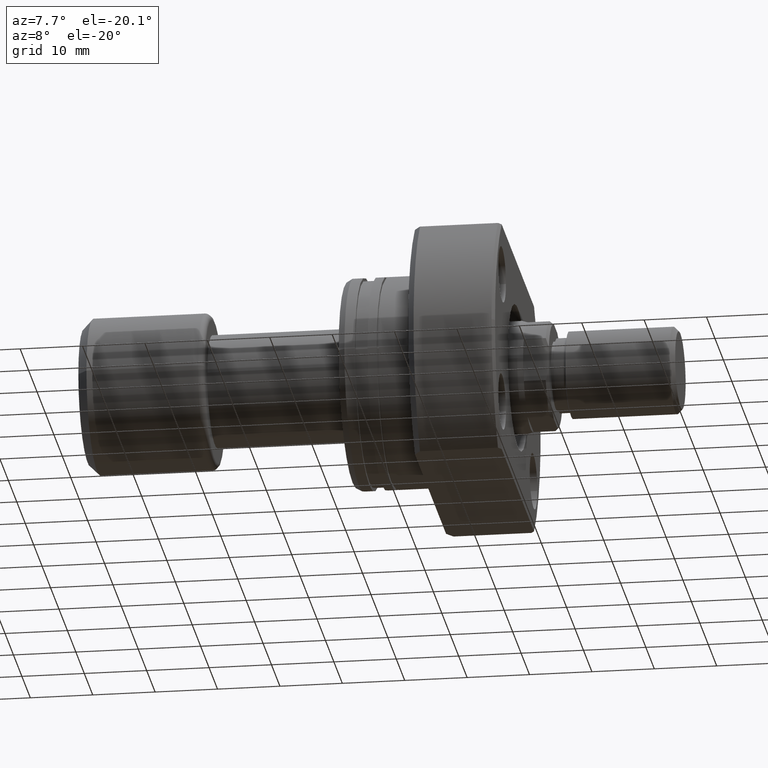
[diagram: clean part render]
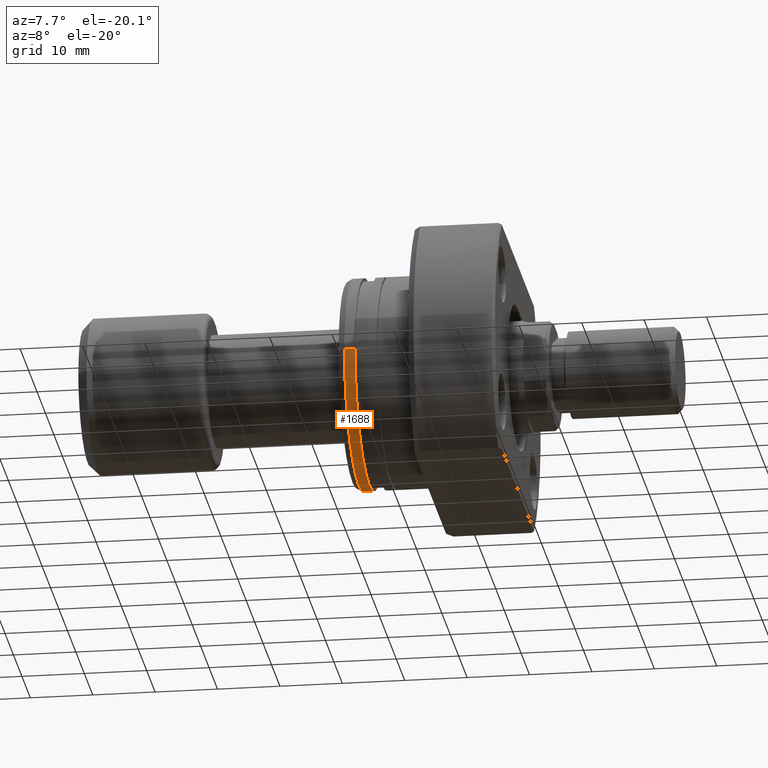
[diagram: same view with one face highlighted and labeled with its STEP entity id]
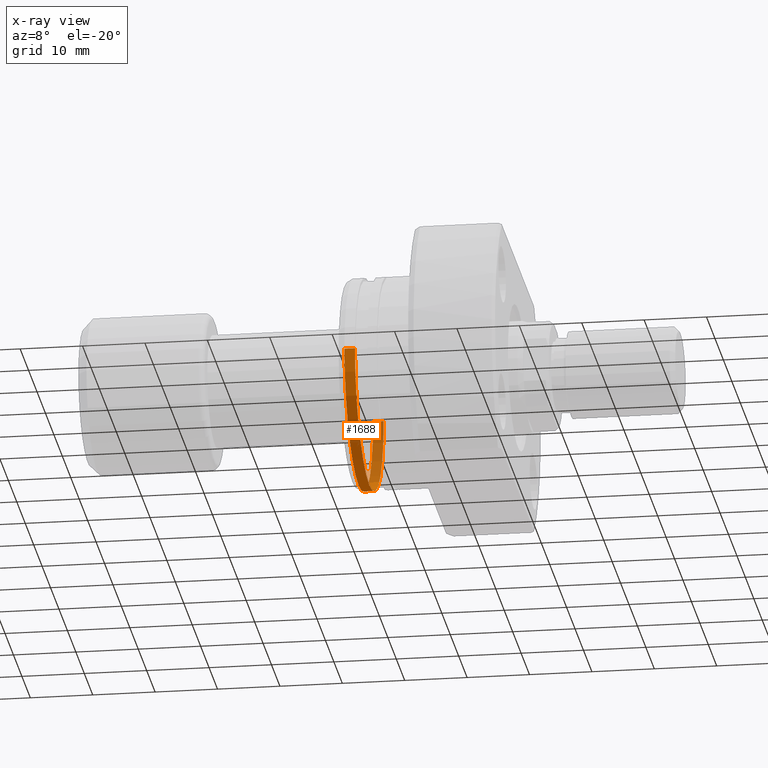
[diagram: x-ray of the same camera — body ghosted, the highlighted face saturated]
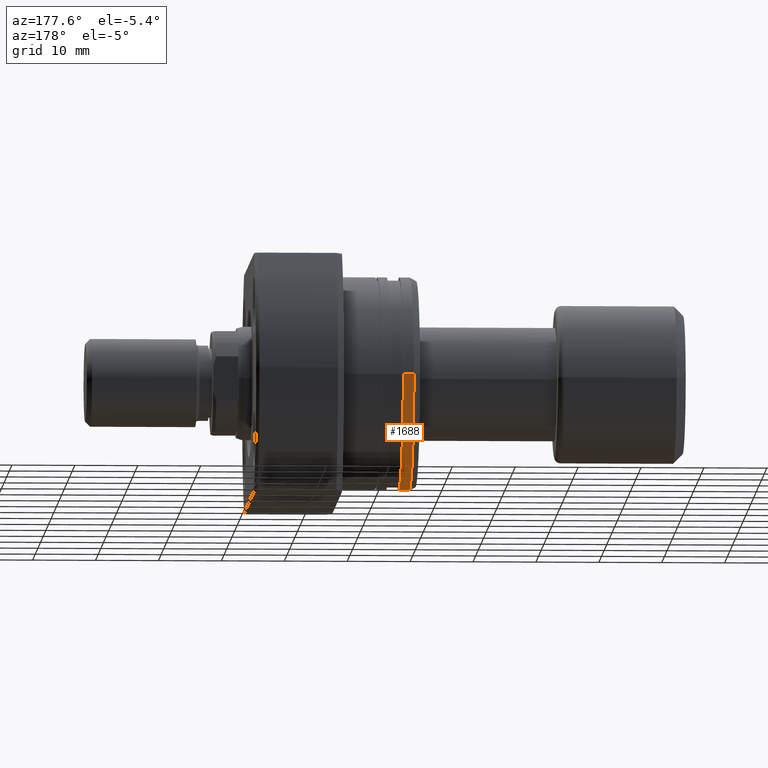
[diagram: same view with one face highlighted and labeled with its STEP entity id]
A machine part, auxiliary view. The second image highlights one B-rep face of the part: STEP entity #1688.
The next image is the same camera in x-ray: the body ghosted, the highlighted face saturated — about 29% of this face is hidden behind the body in this view.
A second angle (auxiliary view) of the same face is appended — the face is thin or edge-on in the first view.
In plain terms, the highlighted cylindrical surface (partial cylindrical patch) has radius 17 mm, axis along (1, 0, 0).
Its self-contained STEP definition (entity closure, byte-faithful):
#19 = DIRECTION ( 'NONE',  ( -1.275531967630005461E-17, 1.000000000000000000, 0.000000000000000000 ) ) ;
#54 = ORIENTED_EDGE ( 'NONE', *, *, #1874, .F. ) ;
#77 = VERTEX_POINT ( 'NONE', #457 ) ;
#274 = CIRCLE ( 'NONE', #456, 16.99999999999999645 ) ;
#319 = CARTESIAN_POINT ( 'NONE',  ( 0.9999999999997859490, -16.99999999999999645, 2.081899558550499885E-15 ) ) ;
#376 = ORIENTED_EDGE ( 'NONE', *, *, #3540, .T. ) ;
#421 = CARTESIAN_POINT ( 'NONE',  ( 26.50000000000000711, -16.99999999999999645, 2.081899558550499885E-15 ) ) ;
#456 = AXIS2_PLACEMENT_3D ( 'NONE', #2344, #949, #3220 ) ;
#457 = CARTESIAN_POINT ( 'NONE',  ( 0.9999999999997856159, 16.99999999999999645, 0.000000000000000000 ) ) ;
#534 = ORIENTED_EDGE ( 'NONE', *, *, #1890, .T. ) ;
#748 = AXIS2_PLACEMENT_3D ( 'NONE', #3396, #3674, #1433 ) ;
#752 = ORIENTED_EDGE ( 'NONE', *, *, #3287, .F. ) ;
#803 = VERTEX_POINT ( 'NONE', #3633 ) ;
#813 = DIRECTION ( 'NONE',  ( 1.000000000000000000, 9.242617352055502386E-18, -0.000000000000000000 ) ) ;
#818 = AXIS2_PLACEMENT_3D ( 'NONE', #3395, #813, #19 ) ;
#872 = LINE ( 'NONE', #2924, #2946 ) ;
#949 = DIRECTION ( 'NONE',  ( 1.000000000000000000, 9.242617352055502386E-18, -0.000000000000000000 ) ) ;
#974 = VERTEX_POINT ( 'NONE', #319 ) ;
#1089 = CYLINDRICAL_SURFACE ( 'NONE', #748, 16.99999999999999645 ) ;
#1151 = CARTESIAN_POINT ( 'NONE',  ( 2.699999999999786127, -16.99999999999999645, 2.081899558550499885E-15 ) ) ;
#1186 = DIRECTION ( 'NONE',  ( 1.000000000000000000, 9.242617352055502386E-18, -0.000000000000000000 ) ) ;
#1433 = DIRECTION ( 'NONE',  ( 0.000000000000000000, 1.000000000000000000, 0.000000000000000000 ) ) ;
#1688 = ADVANCED_FACE ( 'NONE', ( #3656 ), #1089, .T. ) ;
#1852 = LINE ( 'NONE', #421, #2767 ) ;
#1874 = EDGE_CURVE ( 'NONE', #2563, #803, #274, .T. ) ;
#1890 = EDGE_CURVE ( 'NONE', #77, #803, #872, .T. ) ;
#2016 = EDGE_LOOP ( 'NONE', ( #752, #376, #534, #54 ) ) ;
#2344 = CARTESIAN_POINT ( 'NONE',  ( 2.699999999999786127, 2.495506685054785763E-17, 0.000000000000000000 ) ) ;
#2401 = CIRCLE ( 'NONE', #818, 16.99999999999999645 ) ;
#2563 = VERTEX_POINT ( 'NONE', #1151 ) ;
#2767 = VECTOR ( 'NONE', #3615, 1000.000000000000000 ) ;
#2924 = CARTESIAN_POINT ( 'NONE',  ( 26.50000000000000711, 16.99999999999999645, 0.000000000000000000 ) ) ;
#2946 = VECTOR ( 'NONE', #1186, 1000.000000000000000 ) ;
#3220 = DIRECTION ( 'NONE',  ( 0.000000000000000000, 1.000000000000000000, 0.000000000000000000 ) ) ;
#3287 = EDGE_CURVE ( 'NONE', #974, #2563, #1852, .T. ) ;
#3395 = CARTESIAN_POINT ( 'NONE',  ( 0.9999999999997857270, 9.242617352053524071E-18, 0.000000000000000000 ) ) ;
#3396 = CARTESIAN_POINT ( 'NONE',  ( 26.50000000000000711, 2.449293598294708880E-16, 0.000000000000000000 ) ) ;
#3540 = EDGE_CURVE ( 'NONE', #974, #77, #2401, .T. ) ;
#3615 = DIRECTION ( 'NONE',  ( 1.000000000000000000, 9.242617352055502386E-18, -0.000000000000000000 ) ) ;
#3633 = CARTESIAN_POINT ( 'NONE',  ( 2.699999999999786127, 16.99999999999999645, 0.000000000000000000 ) ) ;
#3656 = FACE_OUTER_BOUND ( 'NONE', #2016, .T. ) ;
#3674 = DIRECTION ( 'NONE',  ( 1.000000000000000000, 9.242617352055502386E-18, -0.000000000000000000 ) ) ;